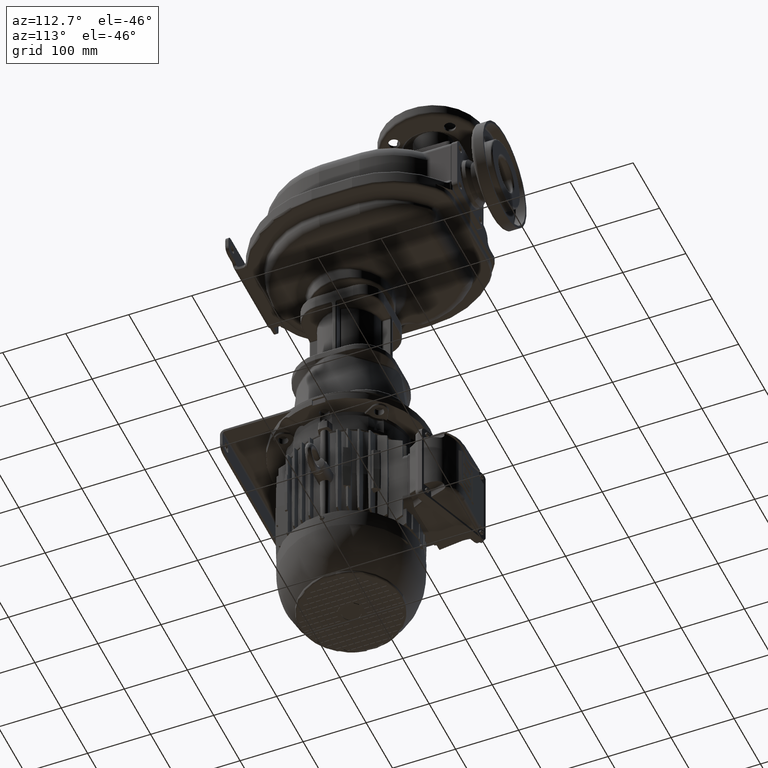
[diagram: clean part render]
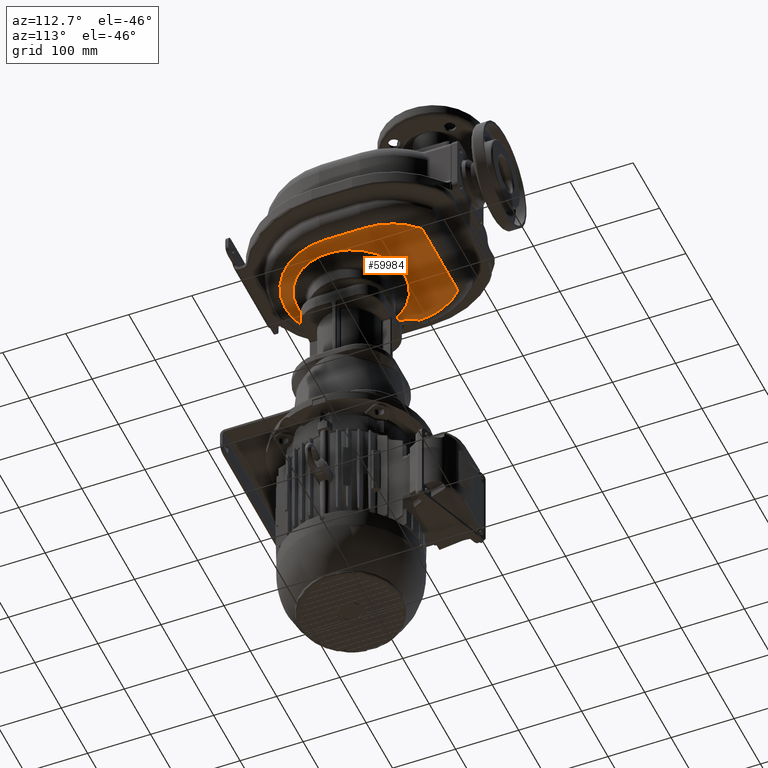
[diagram: same view with one face highlighted and labeled with its STEP entity id]
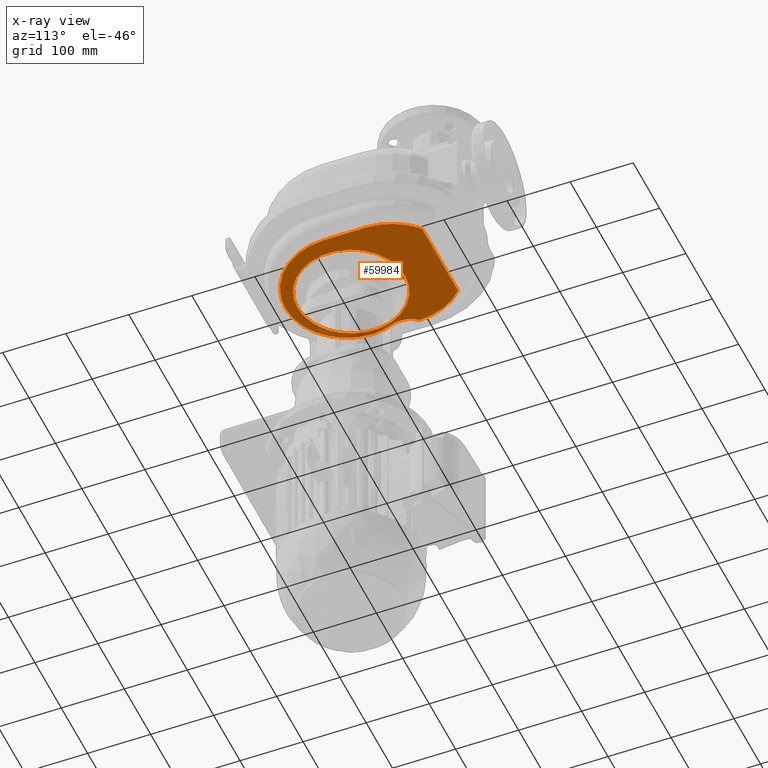
[diagram: x-ray of the same camera — body ghosted, the highlighted face saturated]
A machine part, auxiliary view. The second image highlights one B-rep face of the part: STEP entity #59984.
The next image is the same camera in x-ray: the body ghosted, the highlighted face saturated — about 7% of this face is hidden behind the body in this view.
In plain terms, the highlighted planar face has unit normal (0, 0, -1).
Its self-contained STEP definition (entity closure, byte-faithful):
#10576=CARTESIAN_POINT('',(1.E1,2.29E2,-7.45E1));
#10577=DIRECTION('',(0.E0,0.E0,-1.E0));
#10578=DIRECTION('',(-9.999446808968E-1,1.051832430719E-2,0.E0));
#10579=AXIS2_PLACEMENT_3D('',#10576,#10577,#10578);
#10581=CARTESIAN_POINT('',(-1.222196018903E2,2.038729468385E2,-7.45E1));
#10582=DIRECTION('',(0.E0,0.E0,1.E0));
#10583=DIRECTION('',(9.229889912622E-1,-3.848263530592E-1,0.E0));
#10584=AXIS2_PLACEMENT_3D('',#10581,#10582,#10583);
#10586=CARTESIAN_POINT('',(-5.E0,1.55E2,-7.45E1));
#10587=DIRECTION('',(0.E0,0.E0,-1.E0));
#10588=DIRECTION('',(-1.E0,0.E0,0.E0));
#10589=AXIS2_PLACEMENT_3D('',#10586,#10587,#10588);
#10591=CARTESIAN_POINT('',(5.E0,1.55E2,-7.45E1));
#10592=DIRECTION('',(0.E0,0.E0,-1.E0));
#10593=DIRECTION('',(0.E0,-1.E0,0.E0));
#10594=AXIS2_PLACEMENT_3D('',#10591,#10592,#10593);
#10596=CARTESIAN_POINT('',(5.E0,1.65E2,-7.45E1));
#10597=DIRECTION('',(0.E0,0.E0,-1.E0));
#10598=DIRECTION('',(1.E0,0.E0,0.E0));
#10599=AXIS2_PLACEMENT_3D('',#10596,#10597,#10598);
#10601=DIRECTION('',(0.E0,-1.E0,0.E0));
#10602=VECTOR('',#10601,6.4E1);
#10603=CARTESIAN_POINT('',(1.12E2,2.29E2,-7.45E1));
#10604=LINE('',#10603,#10602);
#10605=CARTESIAN_POINT('',(1.E1,2.29E2,-7.45E1));
#10606=DIRECTION('',(0.E0,0.E0,-1.E0));
#10607=DIRECTION('',(6.754849897899E-1,7.373737373737E-1,0.E0));
#10608=AXIS2_PLACEMENT_3D('',#10605,#10606,#10607);
#10610=CARTESIAN_POINT('',(7.687301398920E1,3.02E2,-7.45E1));
#10611=DIRECTION('',(0.E0,0.E0,-1.E0));
#10612=DIRECTION('',(0.E0,1.E0,0.E0));
#10613=AXIS2_PLACEMENT_3D('',#10610,#10611,#10612);
#10615=DIRECTION('',(1.E0,0.E0,0.E0));
#10616=VECTOR('',#10615,1.337460279784E2);
#10617=CARTESIAN_POINT('',(-5.687301398920E1,3.05E2,-7.45E1));
#10618=LINE('',#10617,#10616);
#10619=CARTESIAN_POINT('',(-5.687301398920E1,3.02E2,-7.45E1));
#10620=DIRECTION('',(0.E0,0.E0,-1.E0));
#10621=DIRECTION('',(-6.754849897900E-1,7.373737373737E-1,0.E0));
#10622=AXIS2_PLACEMENT_3D('',#10619,#10620,#10621);
#10624=CARTESIAN_POINT('',(0.E0,1.6E2,-7.45E1));
#10625=DIRECTION('',(0.E0,0.E0,-1.E0));
#10626=DIRECTION('',(0.E0,1.E0,0.E0));
#10627=AXIS2_PLACEMENT_3D('',#10624,#10625,#10626);
#10629=CARTESIAN_POINT('',(0.E0,1.6E2,-7.45E1));
#10630=DIRECTION('',(0.E0,0.E0,-1.E0));
#10631=DIRECTION('',(0.E0,-1.E0,0.E0));
#10632=AXIS2_PLACEMENT_3D('',#10629,#10630,#10631);
#10634=CARTESIAN_POINT('',(-9.199435689668E1,2.300728503084E2,-7.45E1));
#39056=VERTEX_POINT('',#10634);
#39059=CARTESIAN_POINT('',(2.743897526979E-14,2.453137084990E2,-7.45E1));
#39060=CARTESIAN_POINT('',(-1.699107151259E-14,7.468629150102E1,-7.45E1));
#39061=VERTEX_POINT('',#39059);
#39062=VERTEX_POINT('',#39060);
#39075=CARTESIAN_POINT('',(-5.889946895857E1,3.042121212121E2,-7.45E1));
#39076=VERTEX_POINT('',#39075);
#39079=CARTESIAN_POINT('',(-5.687301398920E1,3.05E2,-7.45E1));
#39080=VERTEX_POINT('',#39079);
#39083=CARTESIAN_POINT('',(7.687301398920E1,3.05E2,-7.45E1));
#39084=VERTEX_POINT('',#39083);
#39087=CARTESIAN_POINT('',(7.889946895857E1,3.042121212121E2,-7.45E1));
#39088=VERTEX_POINT('',#39087);
#39091=CARTESIAN_POINT('',(1.12E2,2.29E2,-7.45E1));
#39092=VERTEX_POINT('',#39091);
#39095=CARTESIAN_POINT('',(1.12E2,1.65E2,-7.45E1));
#39096=VERTEX_POINT('',#39095);
#39099=CARTESIAN_POINT('',(5.E0,5.8E1,-7.45E1));
#39100=VERTEX_POINT('',#39099);
#39103=CARTESIAN_POINT('',(-9.2E1,1.55E2,-7.45E1));
#39104=VERTEX_POINT('',#39103);
#39107=CARTESIAN_POINT('',(-8.530004223981E1,1.884798927162E2,-7.45E1));
#39108=VERTEX_POINT('',#39107);
#59952=CARTESIAN_POINT('',(0.E0,1.6E2,-7.45E1));
#59953=DIRECTION('',(0.E0,0.E0,-1.E0));
#59954=DIRECTION('',(-1.E0,0.E0,0.E0));
#59955=AXIS2_PLACEMENT_3D('',#59952,#59953,#59954);
#59956=PLANE('',#59955);
#59958=ORIENTED_EDGE('',*,*,#59957,.F.);
#59960=ORIENTED_EDGE('',*,*,#59959,.F.);
#59962=ORIENTED_EDGE('',*,*,#59961,.F.);
#59964=ORIENTED_EDGE('',*,*,#59963,.F.);
#59966=ORIENTED_EDGE('',*,*,#59965,.F.);
#59968=ORIENTED_EDGE('',*,*,#59967,.F.);
#59970=ORIENTED_EDGE('',*,*,#59969,.F.);
#59972=ORIENTED_EDGE('',*,*,#59971,.F.);
#59974=ORIENTED_EDGE('',*,*,#59973,.F.);
#59976=ORIENTED_EDGE('',*,*,#59975,.F.);
#59977=EDGE_LOOP('',(#59958,#59960,#59962,#59964,#59966,#59968,#59970,#59972,
#59974,#59976));
#59978=FACE_OUTER_BOUND('',#59977,.F.);
#59980=ORIENTED_EDGE('',*,*,#59979,.T.);
#59981=ORIENTED_EDGE('',*,*,#59942,.T.);
#59982=EDGE_LOOP('',(#59980,#59981));
#59983=FACE_BOUND('',#59982,.F.);
#59984=ADVANCED_FACE('',(#59978,#59983),#59956,.T.);
#10580=CIRCLE('',#10579,1.02E2);
#10585=CIRCLE('',#10584,4.E1);
#10590=CIRCLE('',#10589,8.7E1);
#10595=CIRCLE('',#10594,9.7E1);
#10600=CIRCLE('',#10599,1.07E2);
#10609=CIRCLE('',#10608,1.02E2);
#10614=CIRCLE('',#10613,3.E0);
#10623=CIRCLE('',#10622,3.E0);
#10628=CIRCLE('',#10627,8.531370849898E1);
#10633=CIRCLE('',#10632,8.531370849898E1);
#59942=EDGE_CURVE('',#39062,#39061,#10633,.T.);
#59957=EDGE_CURVE('',#39056,#39076,#10580,.T.);
#59959=EDGE_CURVE('',#39108,#39056,#10585,.T.);
#59961=EDGE_CURVE('',#39104,#39108,#10590,.T.);
#59963=EDGE_CURVE('',#39100,#39104,#10595,.T.);
#59965=EDGE_CURVE('',#39096,#39100,#10600,.T.);
#59967=EDGE_CURVE('',#39092,#39096,#10604,.T.);
#59969=EDGE_CURVE('',#39088,#39092,#10609,.T.);
#59971=EDGE_CURVE('',#39084,#39088,#10614,.T.);
#59973=EDGE_CURVE('',#39080,#39084,#10618,.T.);
#59975=EDGE_CURVE('',#39076,#39080,#10623,.T.);
#59979=EDGE_CURVE('',#39061,#39062,#10628,.T.);